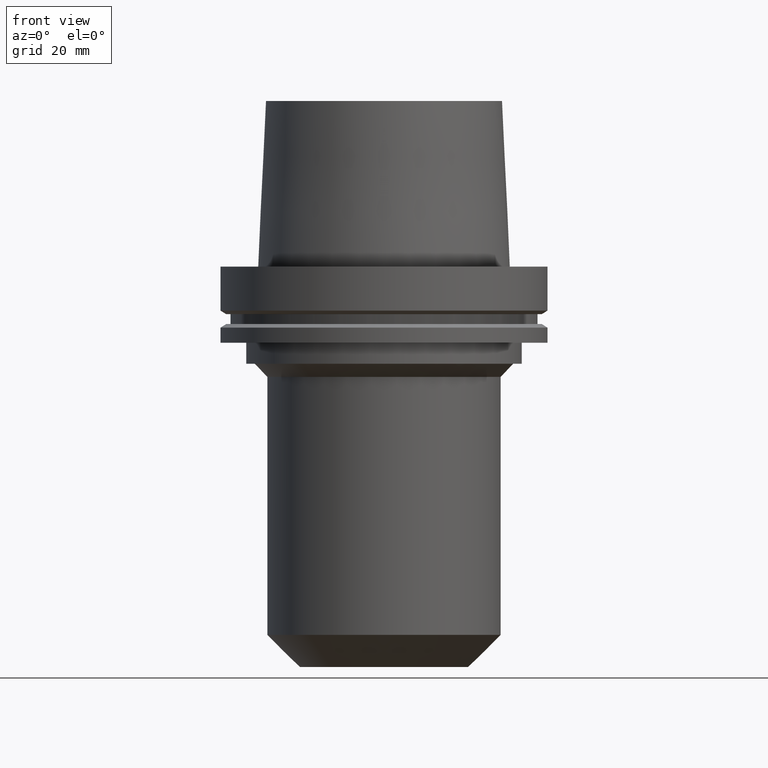
[diagram: clean part render]
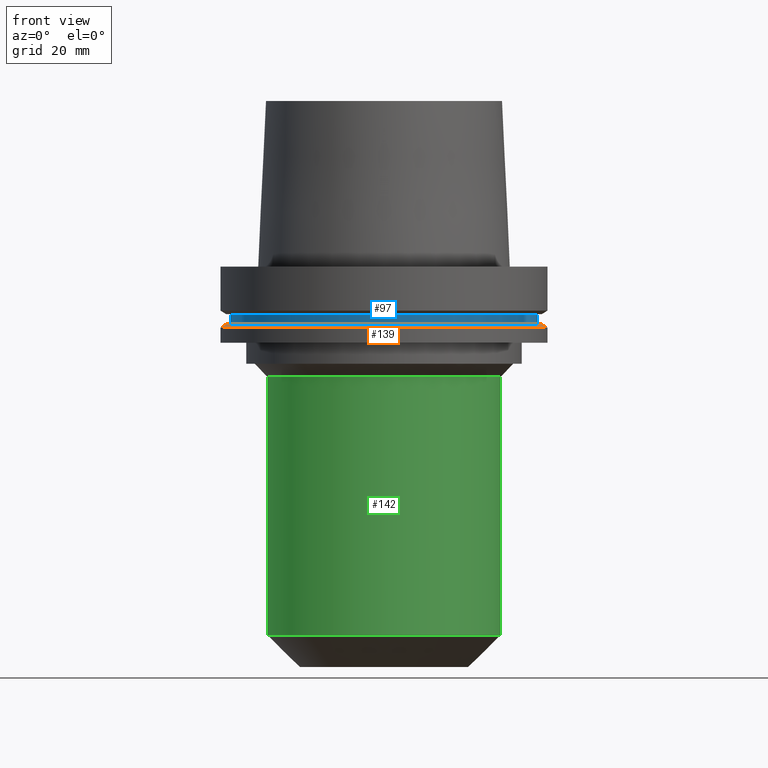
[diagram: same view with three faces highlighted in distinct colors, each labeled with its STEP entity id]
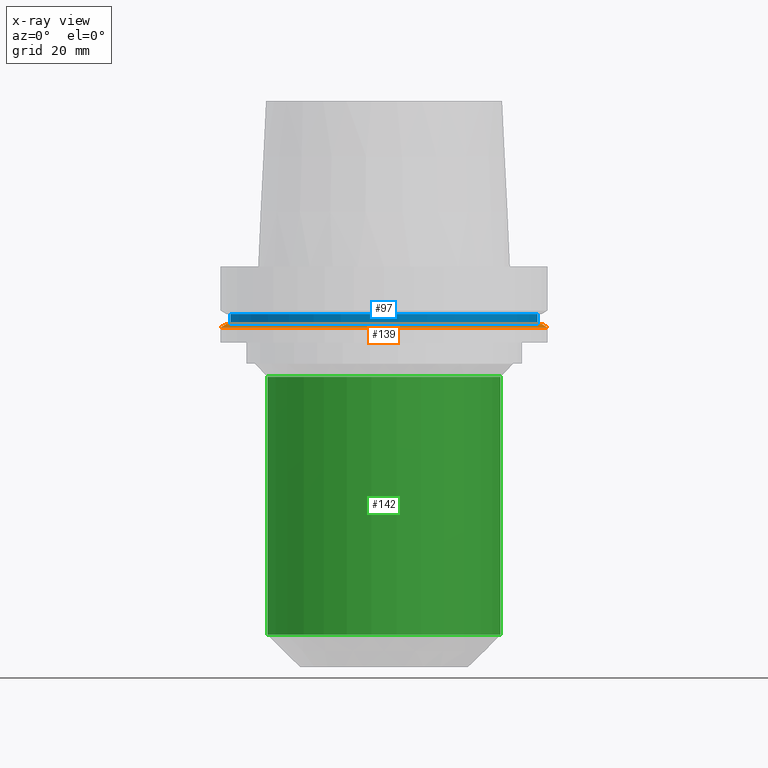
[diagram: x-ray of the same camera — body ghosted, the three highlighted faces saturated]
A machine part, front view with three faces highlighted in distinct colors.
The next image is the same camera in x-ray (body ghosted, the three faces saturated) — at least one of them is partly hidden behind the body in this view.
Their STEP definitions:

[orange] entity #139 — the highlighted conical surface has half-angle 60 deg.
#87=EDGE_CURVE('Unnamed[1]',#204,#204,#205,.T.);
#92=EDGE_CURVE('Unnamed[1]',#212,#212,#213,.T.);
#139=ADVANCED_FACE('Unnamed[1]',(#285,#286),#287,.T.);
#204=VERTEX_POINT('',#356);
#205=CIRCLE('',#357,62.5);
#212=VERTEX_POINT('',#366);
#213=CIRCLE('',#367,60.122595264194);
#285=FACE_BOUND('',#457,.T.);
#286=FACE_BOUND('',#458,.T.);
#287=CONICAL_SURFACE('',#459,61.311297632097,1.04719755119646);
#356=CARTESIAN_POINT('',(1.42350465640827E-015,62.5,-23.2475952641916));
#357=AXIS2_PLACEMENT_3D('',#513,#514,#515);
#366=CARTESIAN_POINT('',(1.33945743656747E-015,60.122595264194,-21.8750000000009));
#367=AXIS2_PLACEMENT_3D('',#522,#523,#524);
#457=EDGE_LOOP('',(#605));
#458=EDGE_LOOP('',(#606));
#459=AXIS2_PLACEMENT_3D('',#607,#608,#609);
#513=CARTESIAN_POINT('',(1.42350465640827E-015,2.84700931281654E-015,-23.2475952641916));
#514=DIRECTION('',(6.12323399573677E-017,1.22464679914723E-016,-1.0));
#515=DIRECTION('',(-1.23259516440783E-032,1.0,1.22464679914723E-016));
#522=CARTESIAN_POINT('',(1.33945743656747E-015,2.67891487313494E-015,-21.8750000000009));
#523=DIRECTION('',(6.12323399573677E-017,1.22464679914738E-016,-1.0));
#524=DIRECTION('',(-1.23259516440791E-032,1.0,1.22464679914738E-016));
#605=ORIENTED_EDGE('',*,*,#87,.F.);
#606=ORIENTED_EDGE('',*,*,#92,.T.);
#607=CARTESIAN_POINT('',(1.38148104648787E-015,2.76296209297574E-015,-22.5612976320962));
#608=DIRECTION('',(6.12323399573677E-017,1.22464679914783E-016,-1.0));
#609=DIRECTION('',(-1.23259516440758E-032,1.0,1.22464679914783E-016));

[blue] entity #97 — the highlighted cylindrical surface (bore or boss wall) has radius 58.5 mm, axis along (0, 0, -1).
#70=EDGE_CURVE('Unnamed[1]',#177,#177,#178,.T.);
#97=ADVANCED_FACE('Unnamed[1]',(#219,#220),#221,.T.);
#111=EDGE_CURVE('Unnamed[1]',#243,#243,#244,.T.);
#177=VERTEX_POINT('',#322);
#178=CIRCLE('',#323,58.5);
#219=FACE_BOUND('',#375,.T.);
#220=FACE_BOUND('',#376,.T.);
#221=CYLINDRICAL_SURFACE('',#377,58.4999999999999);
#243=VERTEX_POINT('',#404);
#244=CIRCLE('',#405,58.4999999999998);
#322=CARTESIAN_POINT('',(1.10983616172739E-015,58.5,-18.1250000000017));
#323=AXIS2_PLACEMENT_3D('',#483,#484,#485);
#375=EDGE_LOOP('',(#529));
#376=EDGE_LOOP('',(#530));
#377=AXIS2_PLACEMENT_3D('',#531,#532,#533);
#404=CARTESIAN_POINT('',(1.33945743656732E-015,58.4999999999998,-21.8749999999984));
#405=AXIS2_PLACEMENT_3D('',#558,#559,#560);
#483=CARTESIAN_POINT('',(1.10983616172739E-015,2.21967232345478E-015,-18.1250000000017));
#484=DIRECTION('',(6.12323399573677E-017,1.22464679914762E-016,-1.0));
#485=DIRECTION('',(-1.23259516440783E-032,1.0,1.22464679914762E-016));
#529=ORIENTED_EDGE('',*,*,#111,.F.);
#530=ORIENTED_EDGE('',*,*,#70,.T.);
#531=CARTESIAN_POINT('',(1.22464679914736E-015,2.44929359829471E-015,-20.0));
#532=DIRECTION('',(6.12323399573677E-017,1.22464679914762E-016,-1.0));
#533=DIRECTION('',(-1.23259516440783E-032,1.0,1.22464679914762E-016));
#558=CARTESIAN_POINT('',(1.33945743656732E-015,2.67891487313464E-015,-21.8749999999984));
#559=DIRECTION('',(6.12323399573677E-017,1.22464679914763E-016,-1.0));
#560=DIRECTION('',(-1.23259516440784E-032,1.0,1.22464679914763E-016));

[green] entity #142 — the highlighted cylindrical surface (bore or boss wall) has radius 44.45 mm, axis along (0, 0, -1).
#116=EDGE_CURVE('Unnamed[1]',#250,#250,#251,.T.);
#128=EDGE_CURVE('Unnamed[1]',#268,#268,#269,.T.);
#142=ADVANCED_FACE('Unnamed[1]',(#290,#291),#292,.T.);
#250=VERTEX_POINT('',#413);
#251=CIRCLE('',#414,44.4500000000002);
#268=VERTEX_POINT('',#436);
#269=CIRCLE('',#437,44.4500000000003);
#290=FACE_BOUND('',#463,.T.);
#291=FACE_BOUND('',#464,.T.);
#292=CYLINDRICAL_SURFACE('',#465,44.4500000000002);
#413=CARTESIAN_POINT('',(2.57175827820943E-015,44.4500000000002,-41.9999999999998));
#414=AXIS2_PLACEMENT_3D('',#566,#567,#568);
#436=CARTESIAN_POINT('',(8.58477406202295E-015,44.4500000000003,-140.2));
#437=AXIS2_PLACEMENT_3D('',#586,#587,#588);
#463=EDGE_LOOP('',(#611));
#464=EDGE_LOOP('',(#612));
#465=AXIS2_PLACEMENT_3D('',#613,#614,#615);
#566=CARTESIAN_POINT('',(2.57175827820943E-015,5.14351655641885E-015,-41.9999999999998));
#567=DIRECTION('',(6.12323399573677E-017,1.22464679914757E-016,-1.0));
#568=DIRECTION('',(-1.23259516440815E-032,1.0,1.22464679914757E-016));
#586=CARTESIAN_POINT('',(8.58477406202295E-015,1.71695481240459E-014,-140.2));
#587=DIRECTION('',(6.12323399573677E-017,1.22464679914757E-016,-1.0));
#588=DIRECTION('',(-1.23259516440815E-032,1.0,1.22464679914757E-016));
#611=ORIENTED_EDGE('',*,*,#128,.F.);
#612=ORIENTED_EDGE('',*,*,#116,.T.);
#613=CARTESIAN_POINT('',(5.57826617011619E-015,1.11565323402324E-014,-91.0999999999999));
#614=DIRECTION('',(6.12323399573677E-017,1.22464679914757E-016,-1.0));
#615=DIRECTION('',(-1.23259516440815E-032,1.0,1.22464679914757E-016));